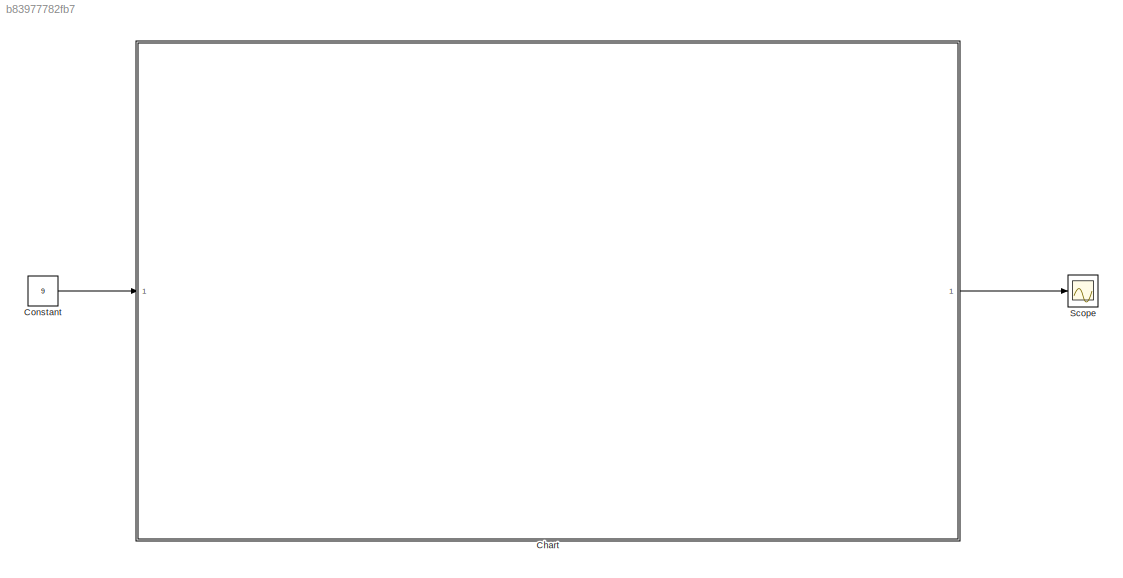
MODEL slx_b83977782fb7
KIND model
CONFIG AbsTol = auto
CONFIG EnableMultiTasking = off
CONFIG FixedStep = 1
CONFIG MaxStep = auto
CONFIG MinStep = auto
CONFIG RelTol = 1e-3
CONFIG SampleTimeConstraint = Unconstrained
CONFIG Solver = FixedStepAuto
CONFIG SolverName = FixedStepAuto
CONFIG StartTime = 0.0
CONFIG StopTime = 20
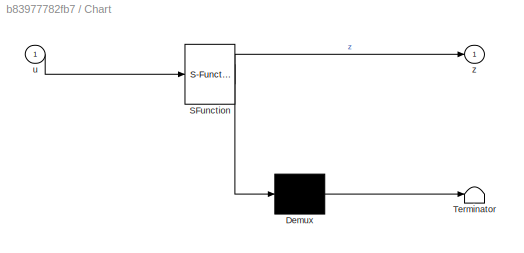
BLOCK [SubSystem] Chart
  BlockKeywords = __PRM__SERIALIZED__DATA__:Stateflow Chart,Stateflow Diagram
  ErrorFcn = Stateflow.Translate.translate
  PermitHierarchicalResolution = ExplicitOnly
  Ports = [1, 1]
  RequestExecContextInheritance = off
  SFBlockType = Chart
  TreatAsAtomicUnit = on
BLOCK [Demux] Chart/ Demux 
  Outputs = 1
  Ports = [1, 1]
BLOCK [S-Function] Chart/ SFunction 
  EnableBusSupport = on
  FunctionName = sf_sfun
  PortCounts = [1 2]
  Ports = [1, 2]
  SFcnIsStateOwnerBlock = off
  SFunctionDeploymentMode = off
  Tag = Stateflow S-Function ex_2 3
BLOCK [Terminator] Chart/ Terminator 
BLOCK [Inport] Chart/u
  IconDisplay = Port number
BLOCK [Outport] Chart/z
  IconDisplay = Port number
BLOCK [Constant] Constant
  Value = 9
BLOCK [Scope] Scope
  Floating = off
  NumInputPorts = 1
  Ports = [1]
  ScopeSpecificationString = Simulink.scopes.TimeScopeBlockCfg('CurrentConfiguration', extmgr.ConfigurationSet(extmgr.Configuration('Core','General UI',true),extmgr.Configuration('Core','Source UI',true),extmgr.Configuration('Sources','WiredSimulink',true),extmgr.Configuration('Visuals','Time Domain',true,'SerializedDisplays',{struct('MinYLimReal','-6.5','MaxYLimReal','58.5','YLabelReal','','MinYLimMag','0.00000','MaxYLimMag'...<+1750ch>
LINE Chart:1 -> Scope:1
LINE Constant:1 -> Chart:1
CHART Chart states=3 transitions=7
  STATE_LABEL 'Init\nentry:\nn2 = rem(n,2);\ny=false;\nexit:\ny=isequal(n,1);'
  STATE_LABEL 'Odd\nentry,during:\nn=3*(n-y)+1;\nn2=rem(n,2);\nz=n;'
  STATE_LABEL 'Even\nentry,during:\nn=n/2;\nn2=rem(n,2);\nz=n;'
